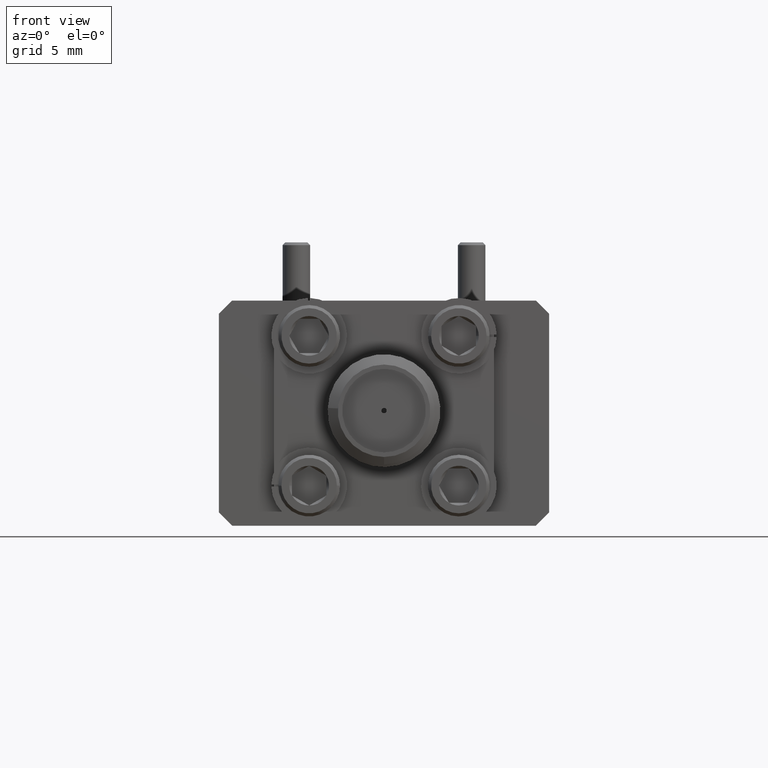
[diagram: clean part render]
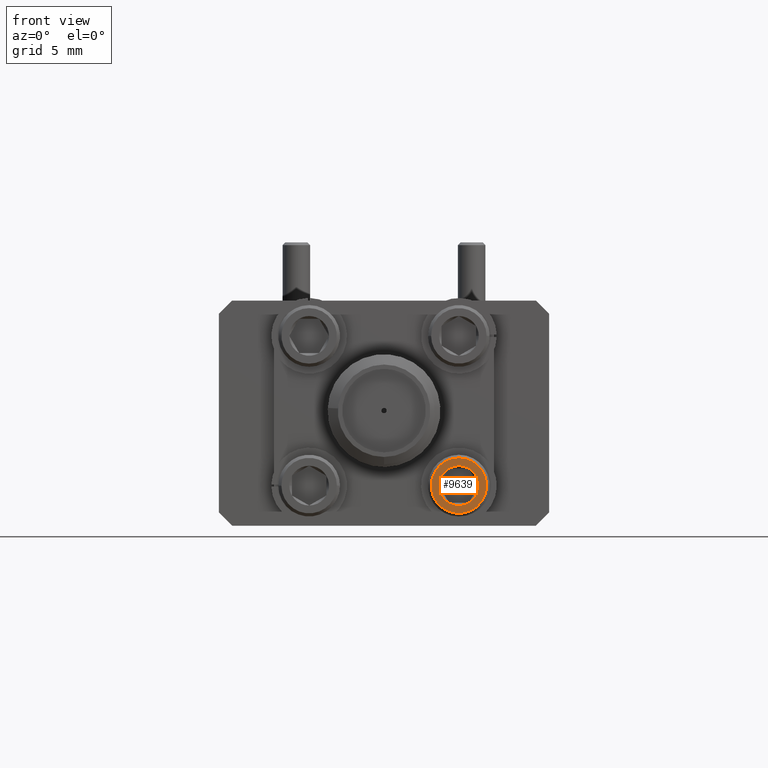
[diagram: same view with one face highlighted and labeled with its STEP entity id]
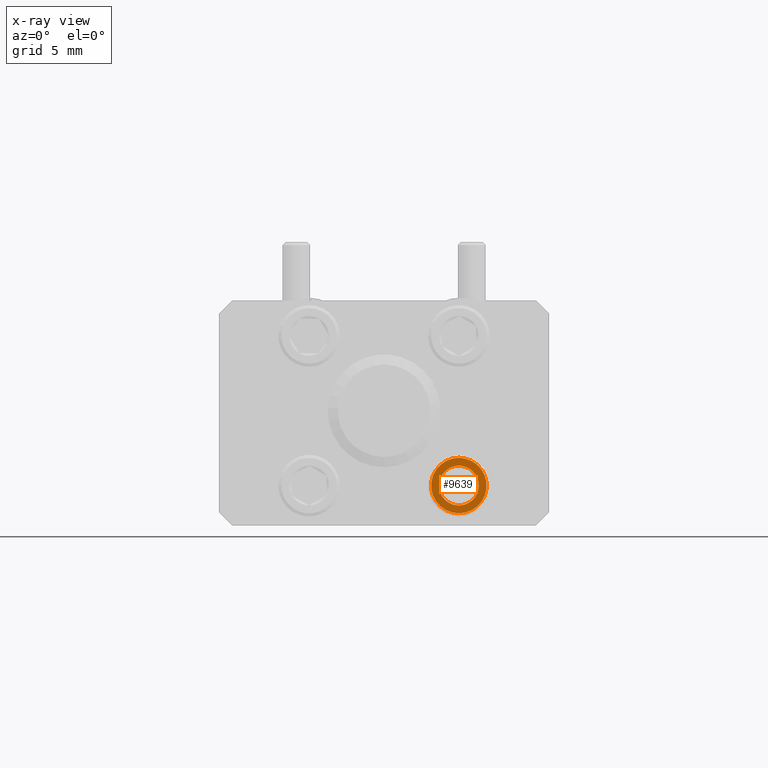
[diagram: x-ray of the same camera — body ghosted, the highlighted face saturated]
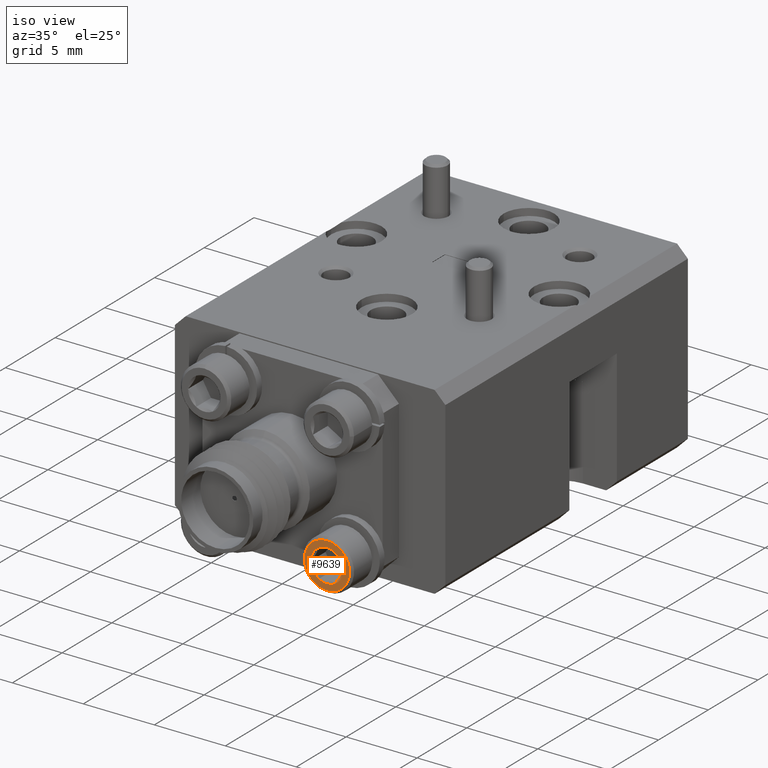
[diagram: same view with one face highlighted and labeled with its STEP entity id]
A machine part, front view. The second image highlights one B-rep face of the part: STEP entity #9639.
The next image is the same camera in x-ray: the body ghosted, the highlighted face saturated — about 0% of this face is hidden behind the body in this view.
A second angle (iso view) of the same face is appended — the face is thin or edge-on in the first view.
In plain terms, the highlighted planar face has unit normal (-0, -1, -0).
Its self-contained STEP definition (entity closure, byte-faithful):
#62 = DIRECTION ( 'NONE',  ( -4.159964152329158300E-016, -1.000000000000000000, -1.809928510337337700E-016 ) ) ;
#89 = CARTESIAN_POINT ( 'NONE',  ( 0.1700000000000020700, -0.6560000000000003600, -0.1639999999999981500 ) ) ;
#309 = AXIS2_PLACEMENT_3D ( 'NONE', #3954, #62, #2408 ) ;
#384 = AXIS2_PLACEMENT_3D ( 'NONE', #3833, #6868, #10079 ) ;
#533 = DIRECTION ( 'NONE',  ( -4.159964152329158300E-016, -1.000000000000000000, -1.809928510337337700E-016 ) ) ;
#547 = CARTESIAN_POINT ( 'NONE',  ( 0.1700000000000020700, -0.6560000000000003600, -0.1639999999999981500 ) ) ;
#587 = AXIS2_PLACEMENT_3D ( 'NONE', #89, #6353, #4860 ) ;
#687 = CARTESIAN_POINT ( 'NONE',  ( 0.1700000000000027600, -0.6560000000000003600, -0.2269999999999982300 ) ) ;
#834 = VERTEX_POINT ( 'NONE', #687 ) ;
#939 = ORIENTED_EDGE ( 'NONE', *, *, #8629, .F. ) ;
#947 = AXIS2_PLACEMENT_3D ( 'NONE', #547, #8475, #2133 ) ;
#1081 = ORIENTED_EDGE ( 'NONE', *, *, #3333, .F. ) ;
#1176 = VERTEX_POINT ( 'NONE', #2751 ) ;
#1369 = VERTEX_POINT ( 'NONE', #2232 ) ;
#1452 = DIRECTION ( 'NONE',  ( 1.059900693282278600E-014, 0.0000000000000000000, -1.000000000000000000 ) ) ;
#1683 = CIRCLE ( 'NONE', #5572, 0.04510548978043953800 ) ;
#1859 = CARTESIAN_POINT ( 'NONE',  ( 0.1248945102195625400, -0.6560000000000003600, -0.1639999999999986200 ) ) ;
#1978 = CARTESIAN_POINT ( 'NONE',  ( 0.1700000000000020700, -0.6560000000000003600, -0.1639999999999981500 ) ) ;
#2114 = CARTESIAN_POINT ( 'NONE',  ( 0.1700000000000025700, -0.6560000000000003600, -0.2091054897804376600 ) ) ;
#2133 = DIRECTION ( 'NONE',  ( 1.029863330944859000E-014, 0.0000000000000000000, -1.000000000000000000 ) ) ;
#2232 = CARTESIAN_POINT ( 'NONE',  ( 0.1925527448902222500, -0.6560000000000003600, -0.2030624999999979300 ) ) ;
#2408 = DIRECTION ( 'NONE',  ( 1.059900693282278600E-014, 0.0000000000000000000, -1.000000000000000000 ) ) ;
#2476 = VERTEX_POINT ( 'NONE', #2114 ) ;
#2557 = VERTEX_POINT ( 'NONE', #7735 ) ;
#2613 = EDGE_CURVE ( 'NONE', #5232, #2934, #5758, .T. ) ;
#2682 = CARTESIAN_POINT ( 'NONE',  ( 0.1700000000000020700, -0.6560000000000003600, -0.1639999999999981500 ) ) ;
#2751 = CARTESIAN_POINT ( 'NONE',  ( 0.1474472551097827100, -0.6560000000000003600, -0.2030624999999983700 ) ) ;
#2934 = VERTEX_POINT ( 'NONE', #1859 ) ;
#3333 = EDGE_CURVE ( 'NONE', #2557, #9606, #1683, .T. ) ;
#3482 = CIRCLE ( 'NONE', #587, 0.04510548978043953800 ) ;
#3760 = AXIS2_PLACEMENT_3D ( 'NONE', #8814, #4094, #7162 ) ;
#3833 = CARTESIAN_POINT ( 'NONE',  ( 0.1700000000000020700, -0.6560000000000003600, -0.1639999999999981500 ) ) ;
#3954 = CARTESIAN_POINT ( 'NONE',  ( 0.1700000000000020700, -0.6560000000000003600, -0.1639999999999981500 ) ) ;
#4094 = DIRECTION ( 'NONE',  ( -4.159964152329158300E-016, -1.000000000000000000, -1.809928510337337700E-016 ) ) ;
#4127 = CARTESIAN_POINT ( 'NONE',  ( 0.1700000000000020700, -0.6560000000000003600, -0.1639999999999981500 ) ) ;
#4204 = CIRCLE ( 'NONE', #3760, 0.04510548978043953800 ) ;
#4393 = EDGE_CURVE ( 'NONE', #1176, #2476, #7205, .T. ) ;
#4506 = DIRECTION ( 'NONE',  ( -4.159964152329158300E-016, -1.000000000000000000, -1.809928510337337700E-016 ) ) ;
#4511 = CIRCLE ( 'NONE', #6110, 0.04510548978043953800 ) ;
#4860 = DIRECTION ( 'NONE',  ( 1.059900693282278600E-014, 0.0000000000000000000, -1.000000000000000000 ) ) ;
#4914 = DIRECTION ( 'NONE',  ( 1.039117728968251300E-014, 1.809928510337297000E-016, -1.000000000000000000 ) ) ;
#4921 = CARTESIAN_POINT ( 'NONE',  ( 0.1474472551097819100, -0.6560000000000003600, -0.1249374999999983700 ) ) ;
#4954 = CARTESIAN_POINT ( 'NONE',  ( 0.1925527448902214200, -0.6560000000000003600, -0.1249374999999979100 ) ) ;
#4982 = DIRECTION ( 'NONE',  ( -4.159964152329158300E-016, -1.000000000000000000, -1.809928510337337700E-016 ) ) ;
#5101 = ORIENTED_EDGE ( 'NONE', *, *, #4393, .F. ) ;
#5232 = VERTEX_POINT ( 'NONE', #4921 ) ;
#5361 = CARTESIAN_POINT ( 'NONE',  ( 0.1700000000000020700, -0.6560000000000003600, -0.1639999999999981500 ) ) ;
#5460 = EDGE_CURVE ( 'NONE', #2476, #1369, #3482, .T. ) ;
#5572 = AXIS2_PLACEMENT_3D ( 'NONE', #1978, #8937, #9935 ) ;
#5623 = CARTESIAN_POINT ( 'NONE',  ( 0.1700000000000014000, -0.6560000000000003600, -0.1009999999999980500 ) ) ;
#5758 = CIRCLE ( 'NONE', #384, 0.04510548978043953800 ) ;
#5800 = AXIS2_PLACEMENT_3D ( 'NONE', #8875, #4982, #8985 ) ;
#5824 = ORIENTED_EDGE ( 'NONE', *, *, #5460, .F. ) ;
#5850 = ORIENTED_EDGE ( 'NONE', *, *, #6586, .T. ) ;
#6051 = FACE_OUTER_BOUND ( 'NONE', #9647, .T. ) ;
#6110 = AXIS2_PLACEMENT_3D ( 'NONE', #5361, #533, #1452 ) ;
#6121 = ORIENTED_EDGE ( 'NONE', *, *, #2613, .F. ) ;
#6353 = DIRECTION ( 'NONE',  ( -4.159964152329158300E-016, -1.000000000000000000, -1.809928510337337700E-016 ) ) ;
#6586 = EDGE_CURVE ( 'NONE', #834, #8838, #8044, .T. ) ;
#6683 = DIRECTION ( 'NONE',  ( 1.029863330944859000E-014, 0.0000000000000000000, -1.000000000000000000 ) ) ;
#6703 = ORIENTED_EDGE ( 'NONE', *, *, #9464, .F. ) ;
#6790 = ORIENTED_EDGE ( 'NONE', *, *, #9829, .T. ) ;
#6804 = ORIENTED_EDGE ( 'NONE', *, *, #10122, .F. ) ;
#6868 = DIRECTION ( 'NONE',  ( -4.159964152329158300E-016, -1.000000000000000000, -1.809928510337337700E-016 ) ) ;
#7162 = DIRECTION ( 'NONE',  ( 1.059900693282278600E-014, 0.0000000000000000000, -1.000000000000000000 ) ) ;
#7205 = CIRCLE ( 'NONE', #309, 0.04510548978043953800 ) ;
#7266 = PLANE ( 'NONE',  #7993 ) ;
#7542 = CIRCLE ( 'NONE', #5800, 0.04510548978043953800 ) ;
#7688 = AXIS2_PLACEMENT_3D ( 'NONE', #2682, #4506, #6683 ) ;
#7735 = CARTESIAN_POINT ( 'NONE',  ( 0.2151054897804415800, -0.6560000000000003600, -0.1639999999999977000 ) ) ;
#7993 = AXIS2_PLACEMENT_3D ( 'NONE', #4127, #9632, #4914 ) ;
#8044 = CIRCLE ( 'NONE', #7688, 0.06300000000000012500 ) ;
#8475 = DIRECTION ( 'NONE',  ( -4.159964152329158300E-016, -1.000000000000000000, -1.809928510337337700E-016 ) ) ;
#8525 = FACE_BOUND ( 'NONE', #9359, .T. ) ;
#8629 = EDGE_CURVE ( 'NONE', #9606, #5232, #4511, .T. ) ;
#8814 = CARTESIAN_POINT ( 'NONE',  ( 0.1700000000000020700, -0.6560000000000003600, -0.1639999999999981500 ) ) ;
#8838 = VERTEX_POINT ( 'NONE', #5623 ) ;
#8875 = CARTESIAN_POINT ( 'NONE',  ( 0.1700000000000020700, -0.6560000000000003600, -0.1639999999999981500 ) ) ;
#8937 = DIRECTION ( 'NONE',  ( -4.159964152329158300E-016, -1.000000000000000000, -1.809928510337337700E-016 ) ) ;
#8985 = DIRECTION ( 'NONE',  ( 1.059900693282278600E-014, 0.0000000000000000000, -1.000000000000000000 ) ) ;
#9359 = EDGE_LOOP ( 'NONE', ( #6703, #5824, #5101, #6804, #6121, #939, #1081 ) ) ;
#9464 = EDGE_CURVE ( 'NONE', #1369, #2557, #4204, .T. ) ;
#9498 = CIRCLE ( 'NONE', #947, 0.06300000000000012500 ) ;
#9606 = VERTEX_POINT ( 'NONE', #4954 ) ;
#9632 = DIRECTION ( 'NONE',  ( -4.159964152329158800E-016, -1.000000000000000000, -1.809928510337340200E-016 ) ) ;
#9639 = ADVANCED_FACE ( 'NONE', ( #6051, #8525 ), #7266, .T. ) ;
#9647 = EDGE_LOOP ( 'NONE', ( #6790, #5850 ) ) ;
#9829 = EDGE_CURVE ( 'NONE', #8838, #834, #9498, .T. ) ;
#9935 = DIRECTION ( 'NONE',  ( 1.059900693282278600E-014, 0.0000000000000000000, -1.000000000000000000 ) ) ;
#10079 = DIRECTION ( 'NONE',  ( 1.059900693282278600E-014, 0.0000000000000000000, -1.000000000000000000 ) ) ;
#10122 = EDGE_CURVE ( 'NONE', #2934, #1176, #7542, .T. ) ;